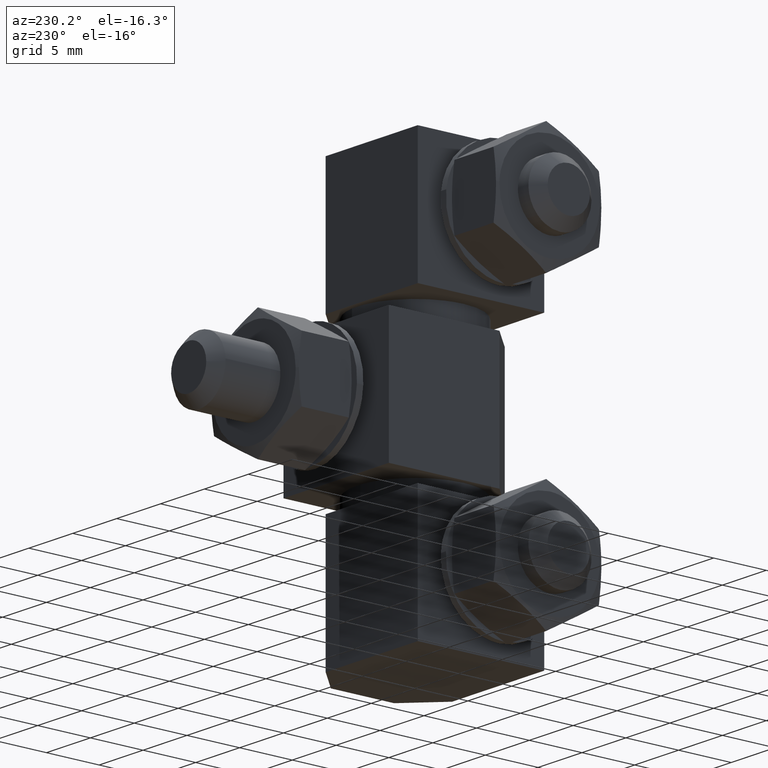
[diagram: clean part render]
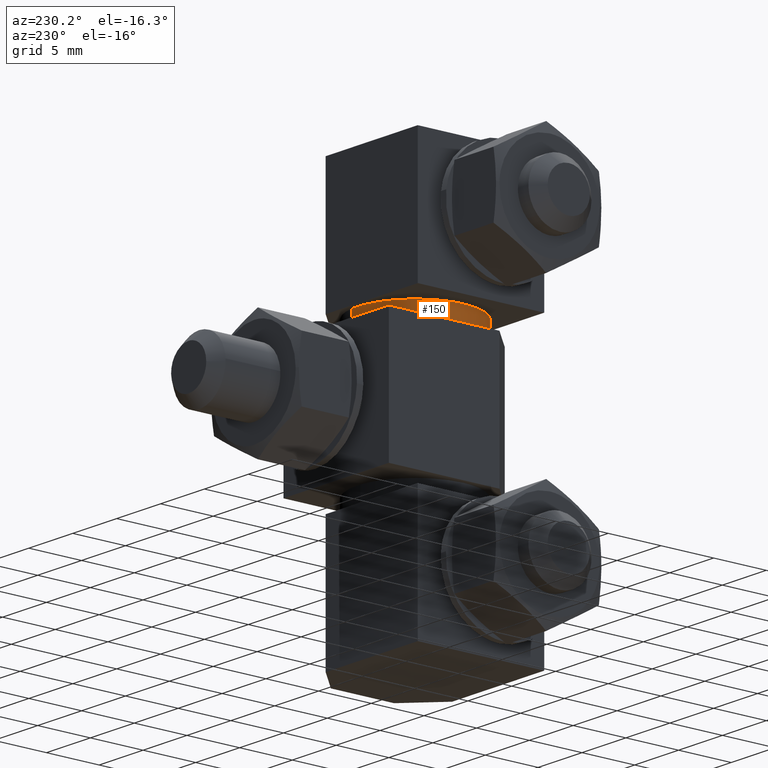
[diagram: same view with one face highlighted and labeled with its STEP entity id]
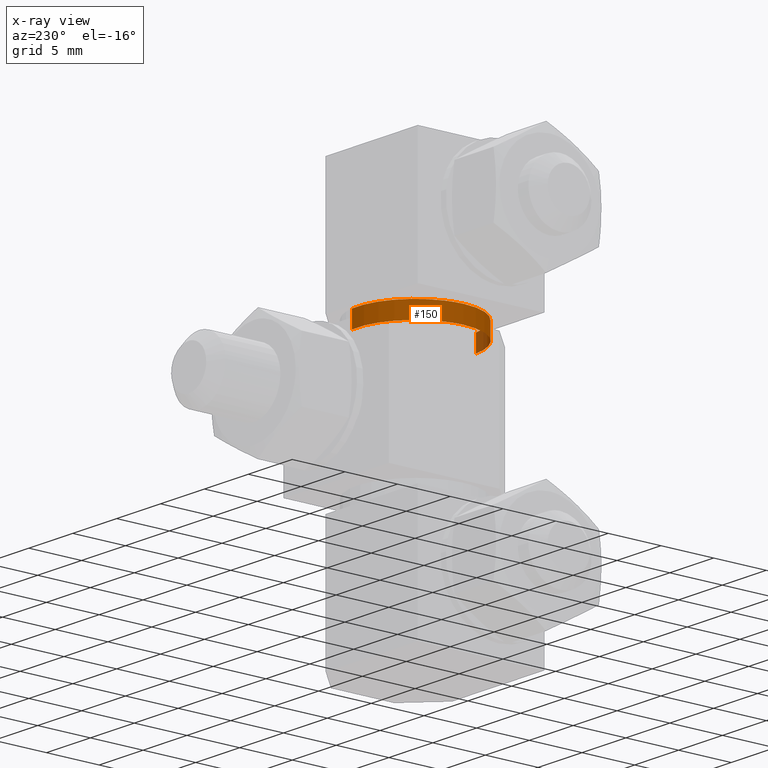
[diagram: x-ray of the same camera — body ghosted, the highlighted face saturated]
A machine part, auxiliary view. The second image highlights one B-rep face of the part: STEP entity #150.
The next image is the same camera in x-ray: the body ghosted, the highlighted face saturated — about 7% of this face is hidden behind the body in this view.
In plain terms, the highlighted face is a freeform B-spline surface patch.
Its self-contained STEP definition (entity closure, byte-faithful):
#44=CARTESIAN_POINT('',(0.730233936521827,-5.451918891460438,13.640001038871727));
#45=CARTESIAN_POINT('',(0.689596860147637,-5.456749223981094,13.640001038871727));
#46=CARTESIAN_POINT('',(0.492881007508877,-5.480131884967332,13.640001038871718));
#47=CARTESIAN_POINT('',(0.335766967441713,-5.489741391320267,13.640001038871720));
#48=CARTESIAN_POINT('',(-5.153974423878553,-5.825508358761980,13.640001038871723));
#49=CARTESIAN_POINT('',(-5.489741391320267,-0.335766967441713,13.640001038871720));
#50=CARTESIAN_POINT('',(-5.825508358761980,5.153974423878553,13.640001038871723));
#51=CARTESIAN_POINT('',(-0.296285502953316,5.492156181135756,13.640001038871727));
#52=CARTESIAN_POINT('',(-0.257038567763932,5.494556626524815,13.640001038871722));
#53=CARTESIAN_POINT('',(0.730233936521827,-5.451918891460438,11.959000558246863));
#54=CARTESIAN_POINT('',(0.689596860147637,-5.456749223981094,11.959000558246860));
#55=CARTESIAN_POINT('',(0.492881007508877,-5.480131884967332,11.959000558246863));
#56=CARTESIAN_POINT('',(0.335766967441713,-5.489741391320267,11.959000558246860));
#57=CARTESIAN_POINT('',(-5.153974423878553,-5.825508358761980,11.959000558246860));
#58=CARTESIAN_POINT('',(-5.489741391320267,-0.335766967441713,11.959000558246860));
#59=CARTESIAN_POINT('',(-5.825508358761980,5.153974423878553,11.959000558246860));
#60=CARTESIAN_POINT('',(-0.296285502953316,5.492156181135756,11.959000558246862));
#61=CARTESIAN_POINT('',(-0.257038567763932,5.494556626524815,11.959000558246863));
#69=(BOUNDED_SURFACE()B_SPLINE_SURFACE(2,1,((#44,#53),(#45,#54),(#46,#55),(#47,#56),(#48,#57),(#49,#58),(#50,#59),(#51,#60),(#52,#61)),.UNSPECIFIED.,.F.,.F.,.U.)B_SPLINE_SURFACE_WITH_KNOTS((3,1,2,2,1,3),(2,2),(0.0,0.092942841509232,0.457450776397556,9.570149148605649,18.682847520813741,18.775808146967169),(0.0,1.0),.UNSPECIFIED.)GEOMETRIC_REPRESENTATION_ITEM()RATIONAL_B_SPLINE_SURFACE(((0.972009176030180,0.972009176030180),(0.974757488412654,0.974757488412654),(0.988284271247462,0.988284271247462),(1.0,1.0),(0.707106781186548,0.707106781186548),(1.0,1.0),(0.707106781186548,0.707106781186548),(1.002987867688020,1.002987867688020),(1.005975735376040,1.005975735376040)))REPRESENTATION_ITEM('')SURFACE());
#70=CARTESIAN_POINT('',(0.649182406941485,-5.461553094357186,12.000000569969229));
#71=VERTEX_POINT('',#70);
#72=CARTESIAN_POINT('',(-5.500000000000000,0.0,12.000000569969419));
#73=VERTEX_POINT('',#72);
#74=CARTESIAN_POINT('',(0.649182406941485,-5.461553094357186,12.000000569969233));
#75=CARTESIAN_POINT('',(0.325729685149930,-5.500000000000000,12.000000569969416));
#76=CARTESIAN_POINT('',(0.0,-5.500000000000000,12.000000569969419));
#77=CARTESIAN_POINT('',(-5.500000000000001,-5.500000000000001,12.000000569969417));
#78=CARTESIAN_POINT('',(-5.500000000000000,0.0,12.000000569969419));
#86=(BOUNDED_CURVE()B_SPLINE_CURVE(2,(#74,#75,#76,#77,#78),.UNSPECIFIED.,.F.,.U.)B_SPLINE_CURVE_WITH_KNOTS((3,2,3),(0.229562655581009,0.250000000000000,0.500000000000000),.UNSPECIFIED.)CURVE()GEOMETRIC_REPRESENTATION_ITEM()RATIONAL_B_SPLINE_CURVE((0.956027111043762,0.976056161636490,1.0,0.707106781186548,1.0))REPRESENTATION_ITEM(''));
#87=EDGE_CURVE('',#71,#73,#86,.T.);
#88=ORIENTED_EDGE('',*,*,#87,.F.);
#89=CARTESIAN_POINT('',(0.649182479614042,-5.461553085719109,13.600001027435081));
#90=VERTEX_POINT('',#89);
#91=CARTESIAN_POINT('',(0.649182479614042,-5.461553085719109,13.600001027435081));
#92=CARTESIAN_POINT('',(0.649182406941485,-5.461553094357186,12.000000569969229));
#93=QUASI_UNIFORM_CURVE('',1,(#91,#92),.UNSPECIFIED.,.F.,.U.);
#94=EDGE_CURVE('',#90,#71,#93,.T.);
#95=ORIENTED_EDGE('',*,*,#94,.F.);
#96=CARTESIAN_POINT('',(-5.500000000000000,0.0,13.600001027435081));
#97=VERTEX_POINT('',#96);
#98=CARTESIAN_POINT('',(0.649182479614042,-5.461553085719109,13.600001027435079));
#99=CARTESIAN_POINT('',(0.325729721870339,-5.500000000000000,13.600001027435082));
#100=CARTESIAN_POINT('',(0.0,-5.500000000000000,13.600001027435081));
#101=CARTESIAN_POINT('',(-5.500000000000001,-5.500000000000001,13.600001027435079));
#102=CARTESIAN_POINT('',(-5.500000000000000,0.0,13.600001027435081));
#110=(BOUNDED_CURVE()B_SPLINE_CURVE(2,(#98,#99,#100,#101,#102),.UNSPECIFIED.,.F.,.U.)B_SPLINE_CURVE_WITH_KNOTS((3,2,3),(0.229562653332216,0.250000000000000,0.500000000000000),.UNSPECIFIED.)CURVE()GEOMETRIC_REPRESENTATION_ITEM()RATIONAL_B_SPLINE_CURVE((0.956027106636028,0.976056159001865,1.0,0.707106781186548,1.0))REPRESENTATION_ITEM(''));
#111=EDGE_CURVE('',#90,#97,#110,.T.);
#112=ORIENTED_EDGE('',*,*,#111,.T.);
#113=CARTESIAN_POINT('',(-0.335757641795476,5.489741961685326,13.600001027435081));
#114=VERTEX_POINT('',#113);
#115=CARTESIAN_POINT('',(-5.500000000000000,0.0,13.600001027435081));
#116=CARTESIAN_POINT('',(-5.500000000000001,5.173892173496902,13.600001027435079));
#117=CARTESIAN_POINT('',(-0.335757641795476,5.489741961685326,13.600001027435079));
#125=(BOUNDED_CURVE()B_SPLINE_CURVE(2,(#115,#116,#117),.UNSPECIFIED.,.F.,.U.)B_SPLINE_CURVE_WITH_KNOTS((3,3),(0.500000000000000,0.739333255354259),.UNSPECIFIED.)CURVE()GEOMETRIC_REPRESENTATION_ITEM()RATIONAL_B_SPLINE_CURVE((1.0,0.719603649880757,0.976072669869441))REPRESENTATION_ITEM(''));
#126=EDGE_CURVE('',#97,#114,#125,.T.);
#127=ORIENTED_EDGE('',*,*,#126,.T.);
#128=CARTESIAN_POINT('',(-0.335757525214737,5.489741968815308,12.000000569969160));
#129=VERTEX_POINT('',#128);
#130=CARTESIAN_POINT('',(-0.335757641795476,5.489741961685326,13.600001027435081));
#131=CARTESIAN_POINT('',(-0.335757525214737,5.489741968815308,12.000000569969160));
#132=QUASI_UNIFORM_CURVE('',1,(#130,#131),.UNSPECIFIED.,.F.,.U.);
#133=EDGE_CURVE('',#114,#129,#132,.T.);
#134=ORIENTED_EDGE('',*,*,#133,.T.);
#135=CARTESIAN_POINT('',(-5.500000000000000,0.0,12.000000569969419));
#136=CARTESIAN_POINT('',(-5.500000000000001,5.173892283575520,12.000000569969419));
#137=CARTESIAN_POINT('',(-0.335757525214737,5.489741968815308,12.000000569969160));
#145=(BOUNDED_CURVE()B_SPLINE_CURVE(2,(#135,#136,#137),.UNSPECIFIED.,.F.,.U.)B_SPLINE_CURVE_WITH_KNOTS((3,3),(0.500000000000000,0.739333259018482),.UNSPECIFIED.)CURVE()GEOMETRIC_REPRESENTATION_ITEM()RATIONAL_B_SPLINE_CURVE((1.0,0.719603645587852,0.976072677722591))REPRESENTATION_ITEM(''));
#146=EDGE_CURVE('',#73,#129,#145,.T.);
#147=ORIENTED_EDGE('',*,*,#146,.F.);
#148=EDGE_LOOP('',(#88,#95,#112,#127,#134,#147));
#149=FACE_OUTER_BOUND('',#148,.T.);
#150=ADVANCED_FACE('',(#149),#69,.T.);